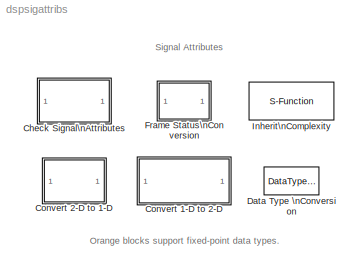
MODEL dspsigattribs
KIND library
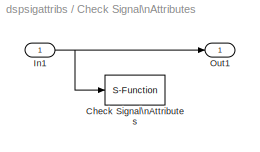
BLOCK [SubSystem] Check Signal\nAttributes
  CopyFcn = dspfixptcopycallback
  MaskCallbackString = |||dspblkchksigattrbs||dspblkchksigattrbs|dspblkchksigattrbs|||dspblkchksigattrbs|
  MaskDescription = Generate an error when the input signal does or does not match selected attributes exactly.
  MaskDisplay = disp('Check Signal\\n Attributes');
  MaskEnableString = on,on,on,on,on,on,on,on,on,on,on
  MaskHelp = web(dspbhelp);
  MaskIconFrame = on
  MaskIconOpaque = on
  MaskIconRotate = none
  MaskIconUnits = autoscale
  MaskPromptString = Error when input:|Complexity:|Frame status:|Dimensionality:|Dimensions:|Data type:|General data type:|Specific floating-point:|Specific fixed-point:|Specific integer:|Sample mode:
  MaskSelfModifiable = on
  MaskStyleString = popup(Does not match attributes exactly|Matches attributes exactly),popup(Ignore|Real|Complex),popup(Ignore|Frame-based|Sample-based),popup(Ignore|Is...|Is not...),popup(1-D|2-D|Scalar (1-D or 2-D)|Vector (1-D or 2-D)|Vector (1-D or 2-D) or scalar|Row vector (2-D)|Row vector (2-D) or scalar|Column vector (2-D)|Column vector (2-D) or scalar|Full matrix (2-D)|Square matrix (2-D)),popup(Ignore|Is...|...<+305ch>
  MaskTabNameString = ,,,,,,,,,,
  MaskToolTipString = on,on,on,on,on,on,on,on,on,on,on
  MaskTunableValueString = off,off,off,off,off,off,off,off,off,off,off
  MaskType = Check Signal Attributes
  MaskValueString = Does not match attributes exactly|Ignore|Ignore|Ignore|1-D|Ignore|Boolean|Any floating-point|Any fixed-point|Any integer|Ignore
  MaskVarAliasString = ,,,,,,,,,,
  MaskVariables = SigAttribCheckMethod=@1;Complexity=@2;Frame=@3;DimsCheckMethod=@4;Dimensions=@5;DatatypeCheckMethod=@6;DatatypeGeneral=@7;DtypeFloatSpecific=@8;DtypeFixedSpecific=@9;DtypeIntSpecific=@10;SampleMode=@11;
  MaskVisibilityString = on,on,on,on,off,on,off,off,off,off,on
  Ports = [1, 1]
  TreatAsAtomicUnit = off
BLOCK [S-Function] Check Signal\nAttributes/Check Signal\nAttributes
  FunctionName = sdspsigattrib
  Parameters = SigAttribCheckMethod,Complexity,Frame,DimsCheckMethod,Dimensions,DatatypeCheckMethod,DatatypeGeneral,DtypeFloatSpecific,DtypeFixedSpecific,DtypeIntSpecific,SampleMode
  Ports = [1]
BLOCK [Inport] Check Signal\nAttributes/In1
  IconDisplay = Port number
BLOCK [Outport] Check Signal\nAttributes/Out1
  BusOutputAsStruct = off
  IconDisplay = Port number
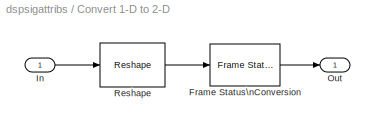
BLOCK [SubSystem] Convert 1-D to 2-D
  CopyFcn = dspfixptcopycallback
  MaskCallbackString = ||
  MaskDescription = Output a (2-D) matrix signal.
  MaskDisplay = disp('reshape(U,M,N)')
  MaskEnableString = on,on,on
  MaskHelp = web(dspbhelp);
  MaskIconFrame = on
  MaskIconOpaque = on
  MaskIconRotate = none
  MaskIconUnits = autoscale
  MaskInitialization = dspblkcnvrt1d2d;
  MaskPromptString = Number of output rows:|Number of output columns:|Frame-based output
  MaskSelfModifiable = on
  MaskStyleString = edit,edit,checkbox
  MaskTabNameString = ,,
  MaskToolTipString = on,on,on
  MaskTunableValueString = off,off,off
  MaskType = Convert 1-D to 2-D
  MaskValueString = 1|1|off
  MaskVarAliasString = ,,
  MaskVariables = M=@1;N=@2;frameBasedOut=@3;
  MaskVisibilityString = on,on,on
  Ports = [1, 1]
  ShowPortLabels = off
  TreatAsAtomicUnit = off
BLOCK [Reference] Convert 1-D to 2-D/Frame Status\nConversion  REF=dspsigattribs/Frame Status\nConversion
  Ports = [1, 1]
  ShowPortLabels = off
  SourceBlock = dspsigattribs/Frame Status\nConversion
  SourceType = Frame Status Conversion
  growRefPort = off
  outframe = Sample-based
BLOCK [Inport] Convert 1-D to 2-D/In
  IconDisplay = Port number
BLOCK [Outport] Convert 1-D to 2-D/Out
  BusOutputAsStruct = off
  IconDisplay = Port number
BLOCK [Reference] Convert 1-D to 2-D/Reshape  REF=simulink/Math\nOperations/Reshape
  OutputDimensionality = Customize
  OutputDimensions = [M,N]
  Ports = [1, 1]
  SourceBlock = simulink/Math\nOperations/Reshape
  SourceType = Reshape
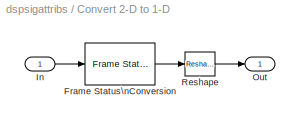
BLOCK [SubSystem] Convert 2-D to 1-D
  CopyFcn = dspfixptcopycallback
  MaskDescription = Output a (1-D) vector signal.
  MaskDisplay = disp('U( : )')
  MaskHelp = web(dspbhelp);
  MaskIconFrame = on
  MaskIconOpaque = on
  MaskIconRotate = none
  MaskIconUnits = autoscale
  MaskSelfModifiable = on
  MaskType = Convert 2-D to 1-D
  Ports = [1, 1]
  ShowPortLabels = off
  TreatAsAtomicUnit = off
BLOCK [Reference] Convert 2-D to 1-D/Frame Status\nConversion  REF=dspsigattribs/Frame Status\nConversion
  Ports = [1, 1]
  SourceBlock = dspsigattribs/Frame Status\nConversion
  SourceType = Frame Status Conversion
  growRefPort = off
  outframe = Sample-based
BLOCK [Inport] Convert 2-D to 1-D/In
  IconDisplay = Port number
BLOCK [Outport] Convert 2-D to 1-D/Out
  BusOutputAsStruct = off
  IconDisplay = Port number
BLOCK [Reference] Convert 2-D to 1-D/Reshape  REF=simulink3/Signals\n& Systems/Reshape
  OutputDimensionality = 1-D array
  OutputDimensions = [1,1]
  Ports = [1, 1]
  SourceBlock = simulink3/Signals\n& Systems/Reshape
  SourceType = Reshape
BLOCK [DataTypeConversion] Data Type \nConversion
  CopyFcn = dspfixptcopycallback
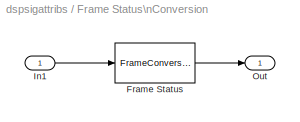
BLOCK [SubSystem] Frame Status\nConversion
  CopyFcn = dspfixptcopycallback
  MaskCallbackString = dspblkfrmconv|
  MaskDescription = Specify the frame status of the output signal.
  MaskDisplay = port_label(p.in1,   p.i1,  p.i1s);\nport_label(p.in2,   p.i2,  p.i2s);\nport_label(p.out, p.o1, p.o1s);\ndisp(str)
  MaskEnableString = on,on
  MaskHelp = web(dspbhelp);
  MaskIconFrame = on
  MaskIconOpaque = on
  MaskIconRotate = none
  MaskIconUnits = autoscale
  MaskInitialization = [p, str] = dspblkfrmconv('init');
  MaskPromptString = Inherit output frame status from Ref input port|Output signal:
  MaskSelfModifiable = on
  MaskStyleString = checkbox,popup(Frame-based|Sample-based)
  MaskTabNameString = ,
  MaskToolTipString = on,on
  MaskTunableValueString = off,off
  MaskType = Frame Status Conversion
  MaskValueString = off|Frame-based
  MaskVarAliasString = ,
  MaskVariables = growRefPort=@1;outframe=@2;
  MaskVisibilityString = on,on
  Ports = [1, 1]
  ShowPortLabels = off
  TreatAsAtomicUnit = off
BLOCK [FrameConversion] Frame Status\nConversion/Frame Status
  OutFrame = Frame based
BLOCK [Inport] Frame Status\nConversion/In1
  IconDisplay = Port number
BLOCK [Outport] Frame Status\nConversion/Out
  BusOutputAsStruct = off
  IconDisplay = Port number
BLOCK [S-Function] Inherit\nComplexity
  CopyFcn = dspfixptcopycallback
  FunctionName = sdspihcplx2
  MaskDescription = Copy data from the Data input with the complexity of the reference signal. If the data is real and the reference is complex, an all zero imaginary part is created. If the data is complex and the reference is real, the imaginary part of the input is removed.
  MaskDisplay = text(.9,0.5,'Inherit\\nComplexity','horiz','right');\nport_label('input',1,'Data');\nport_label('input',2,'Ref');\n
  MaskHelp = web(dspbhelp);
  MaskIconFrame = on
  MaskIconOpaque = on
  MaskIconRotate = none
  MaskIconUnits = normalized
  MaskSelfModifiable = on
  MaskType = Inherit Complexity
  Ports = [2, 1]
ANNOTATION (root): Orange blocks support fixed-point data types.
ANNOTATION (root): Signal Attributes
NET Check Signal\nAttributes/In1:1 -> Check Signal\nAttributes/Check Signal\nAttributes:1, Check Signal\nAttributes/Out1:1
LINE Convert 1-D to 2-D/Frame Status\nConversion:1 -> Convert 1-D to 2-D/Out:1
LINE Convert 1-D to 2-D/In:1 -> Convert 1-D to 2-D/Reshape:1
LINE Convert 1-D to 2-D/Reshape:1 -> Convert 1-D to 2-D/Frame Status\nConversion:1
LINE Convert 2-D to 1-D/Frame Status\nConversion:1 -> Convert 2-D to 1-D/Reshape:1
LINE Convert 2-D to 1-D/In:1 -> Convert 2-D to 1-D/Frame Status\nConversion:1
LINE Convert 2-D to 1-D/Reshape:1 -> Convert 2-D to 1-D/Out:1
LINE Frame Status\nConversion/Frame Status:1 -> Frame Status\nConversion/Out:1
LINE Frame Status\nConversion/In1:1 -> Frame Status\nConversion/Frame Status:1
note: NET lines group one-source signal fan-out (src -> all destinations, sorted); 1:1 wires keep LINE
